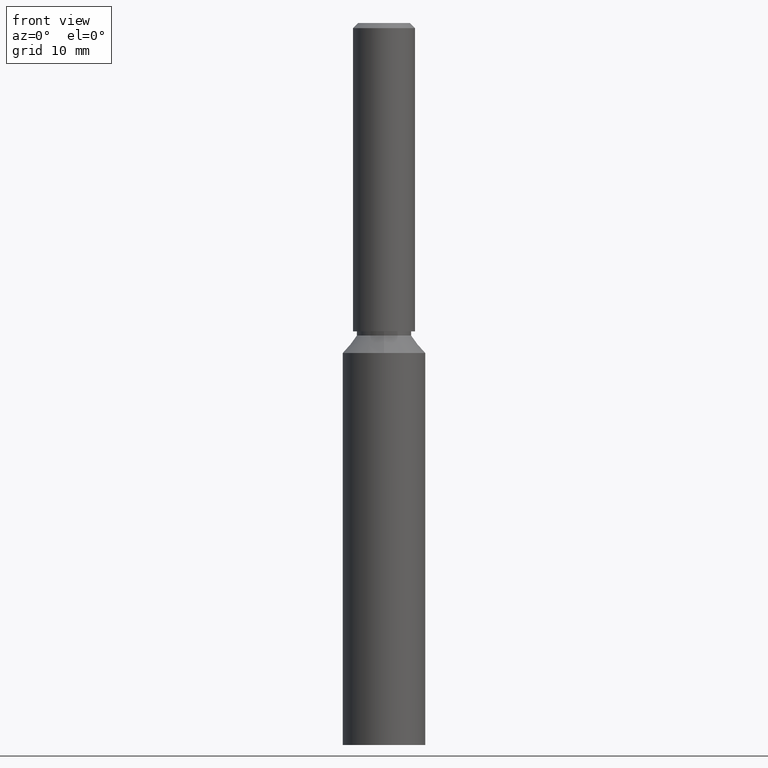
[diagram: clean part render]
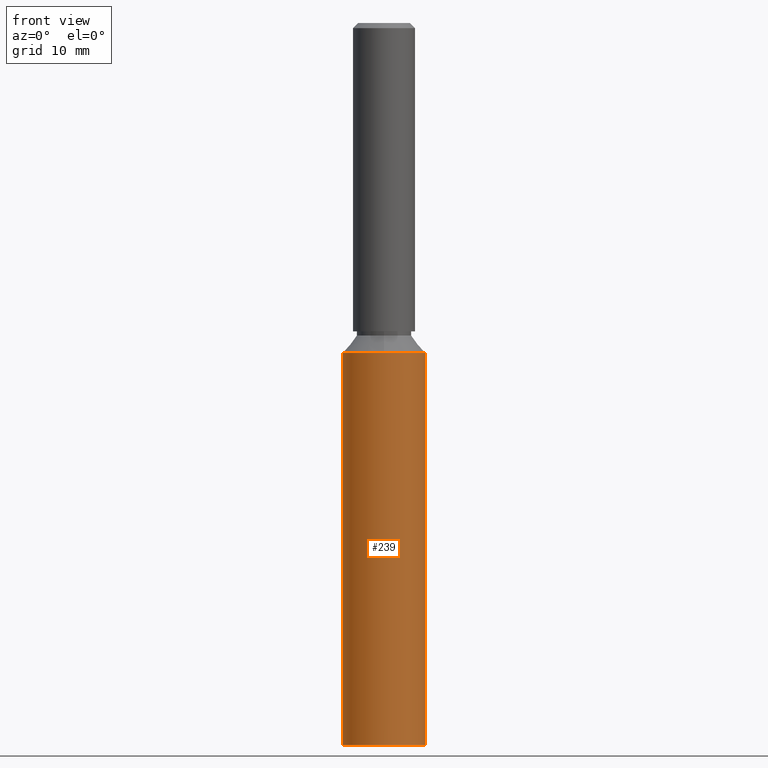
[diagram: same view with one face highlighted and labeled with its STEP entity id]
A machine part, front view. The second image highlights one B-rep face of the part: STEP entity #239.
In plain terms, the highlighted cylindrical surface (partial cylindrical patch) has radius 4 mm, axis along (-0, -0, -1).
Its self-contained STEP definition (entity closure, byte-faithful):
#164 = DIRECTION ( 'NONE',  ( 0.0000000000000000000, 0.0000000000000000000, 1.000000000000000000 ) ) ;
#239 = ADVANCED_FACE ( 'NONE', ( #502 ), #6453, .T. ) ;
#388 = LINE ( 'NONE', #3251, #9811 ) ;
#502 = FACE_OUTER_BOUND ( 'NONE', #4730, .T. ) ;
#751 = ORIENTED_EDGE ( 'NONE', *, *, #1804, .T. ) ;
#1022 = VERTEX_POINT ( 'NONE', #1407 ) ;
#1046 = DIRECTION ( 'NONE',  ( 1.000000000000000000, 0.0000000000000000000, 0.0000000000000000000 ) ) ;
#1073 = VERTEX_POINT ( 'NONE', #10138 ) ;
#1086 = EDGE_CURVE ( 'NONE', #10247, #1073, #9910, .T. ) ;
#1407 = CARTESIAN_POINT ( 'NONE',  ( 4.000000000000000000, 4.898587196589412800E-016, 0.0000000000000000000 ) ) ;
#1804 = EDGE_CURVE ( 'NONE', #5255, #4703, #13713, .T. ) ;
#1995 = VECTOR ( 'NONE', #10152, 1000.000000000000000 ) ;
#2869 = CARTESIAN_POINT ( 'NONE',  ( 0.0000000000000000000, -7.477419753763976000E-017, 38.00000000000000000 ) ) ;
#3026 = CARTESIAN_POINT ( 'NONE',  ( -4.000000000000005300, 9.629649721936179300E-032, 38.00000000000000000 ) ) ;
#3251 = CARTESIAN_POINT ( 'NONE',  ( 4.000000000000000000, 4.898587196589412800E-016, 40.00000000000000000 ) ) ;
#3390 = DIRECTION ( 'NONE',  ( -0.0000000000000000000, -0.0000000000000000000, -1.000000000000000000 ) ) ;
#3928 = DIRECTION ( 'NONE',  ( -0.0000000000000000000, 1.967742040464204400E-018, -1.000000000000000000 ) ) ;
#3949 = CARTESIAN_POINT ( 'NONE',  ( -4.000000000000000000, 0.0000000000000000000, 40.00000000000000000 ) ) ;
#4413 = CARTESIAN_POINT ( 'NONE',  ( 0.0000000000000000000, 0.0000000000000000000, 40.00000000000000000 ) ) ;
#4703 = VERTEX_POINT ( 'NONE', #12232 ) ;
#4730 = EDGE_LOOP ( 'NONE', ( #8835, #10155, #11048, #751, #4994 ) ) ;
#4790 = AXIS2_PLACEMENT_3D ( 'NONE', #8616, #164, #1046 ) ;
#4831 = CARTESIAN_POINT ( 'NONE',  ( 0.0000000000000000000, -7.477419753763976000E-017, 38.00000000000000000 ) ) ;
#4994 = ORIENTED_EDGE ( 'NONE', *, *, #10185, .T. ) ;
#5255 = VERTEX_POINT ( 'NONE', #3026 ) ;
#5852 = CARTESIAN_POINT ( 'NONE',  ( 4.000000000000005300, 4.898587196589420700E-016, 38.00000000000000000 ) ) ;
#6020 = AXIS2_PLACEMENT_3D ( 'NONE', #2869, #3928, #11308 ) ;
#6453 = CYLINDRICAL_SURFACE ( 'NONE', #10093, 4.000000000000000000 ) ;
#6614 = DIRECTION ( 'NONE',  ( -0.0000000000000000000, -0.0000000000000000000, -1.000000000000000000 ) ) ;
#7795 = DIRECTION ( 'NONE',  ( -0.0000000000000000000, 1.967742040464204400E-018, -1.000000000000000000 ) ) ;
#8247 = AXIS2_PLACEMENT_3D ( 'NONE', #4831, #7795, #12236 ) ;
#8616 = CARTESIAN_POINT ( 'NONE',  ( 0.0000000000000000000, 0.0000000000000000000, 0.0000000000000000000 ) ) ;
#8835 = ORIENTED_EDGE ( 'NONE', *, *, #10494, .F. ) ;
#9663 = CIRCLE ( 'NONE', #8247, 4.000000000000005300 ) ;
#9811 = VECTOR ( 'NONE', #3390, 1000.000000000000000 ) ;
#9910 = CIRCLE ( 'NONE', #6020, 4.000000000000005300 ) ;
#10093 = AXIS2_PLACEMENT_3D ( 'NONE', #4413, #6614, #11856 ) ;
#10138 = CARTESIAN_POINT ( 'NONE',  ( 4.898587196589419700E-016, -4.000000000000005300, 38.00000000000000000 ) ) ;
#10152 = DIRECTION ( 'NONE',  ( -0.0000000000000000000, -0.0000000000000000000, -1.000000000000000000 ) ) ;
#10155 = ORIENTED_EDGE ( 'NONE', *, *, #1086, .T. ) ;
#10185 = EDGE_CURVE ( 'NONE', #4703, #1022, #11815, .T. ) ;
#10247 = VERTEX_POINT ( 'NONE', #5852 ) ;
#10494 = EDGE_CURVE ( 'NONE', #10247, #1022, #388, .T. ) ;
#11048 = ORIENTED_EDGE ( 'NONE', *, *, #11624, .T. ) ;
#11308 = DIRECTION ( 'NONE',  ( 0.0000000000000000000, 1.000000000000000000, 0.0000000000000000000 ) ) ;
#11624 = EDGE_CURVE ( 'NONE', #1073, #5255, #9663, .T. ) ;
#11815 = CIRCLE ( 'NONE', #4790, 4.000000000000000000 ) ;
#11856 = DIRECTION ( 'NONE',  ( -1.000000000000000000, 0.0000000000000000000, 0.0000000000000000000 ) ) ;
#12232 = CARTESIAN_POINT ( 'NONE',  ( -4.000000000000000000, 0.0000000000000000000, 0.0000000000000000000 ) ) ;
#12236 = DIRECTION ( 'NONE',  ( 0.0000000000000000000, 1.000000000000000000, 0.0000000000000000000 ) ) ;
#13713 = LINE ( 'NONE', #3949, #1995 ) ;